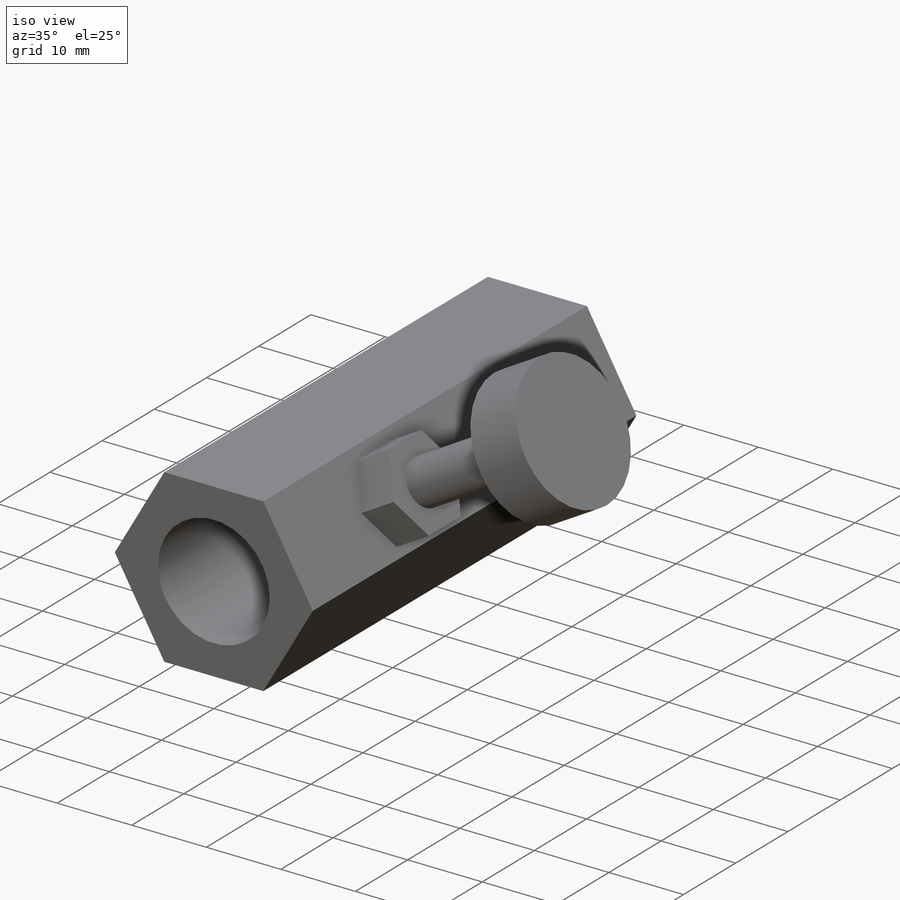
[diagram: iso view]
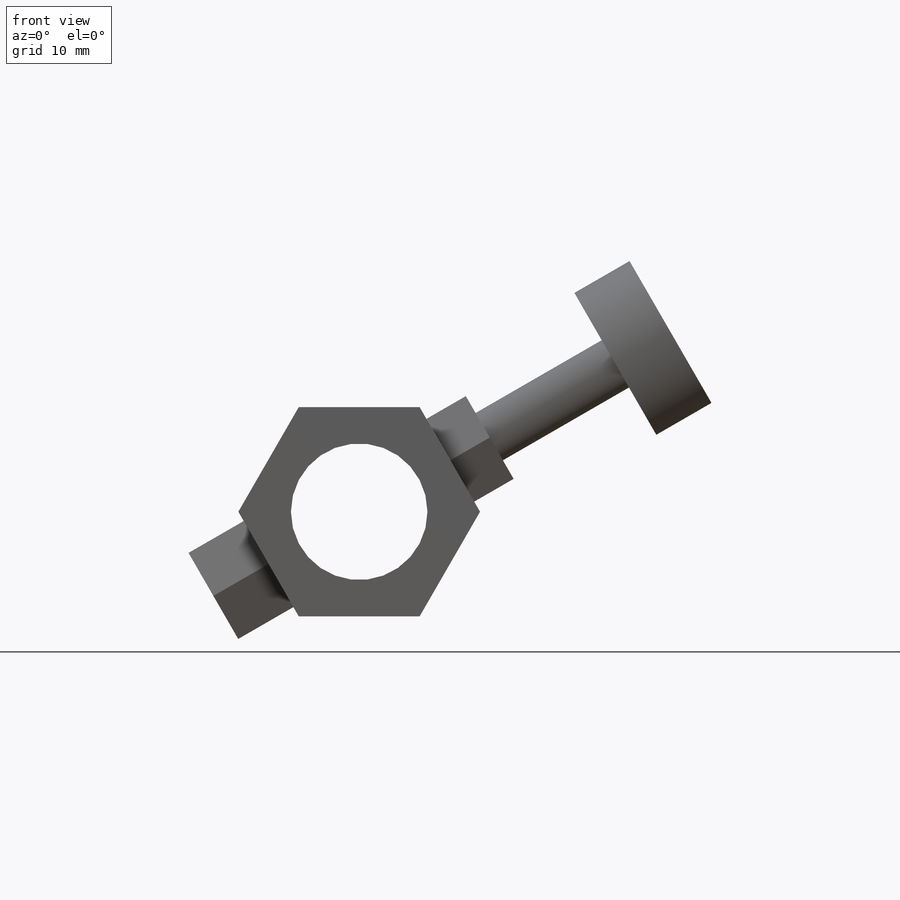
[diagram: front view]
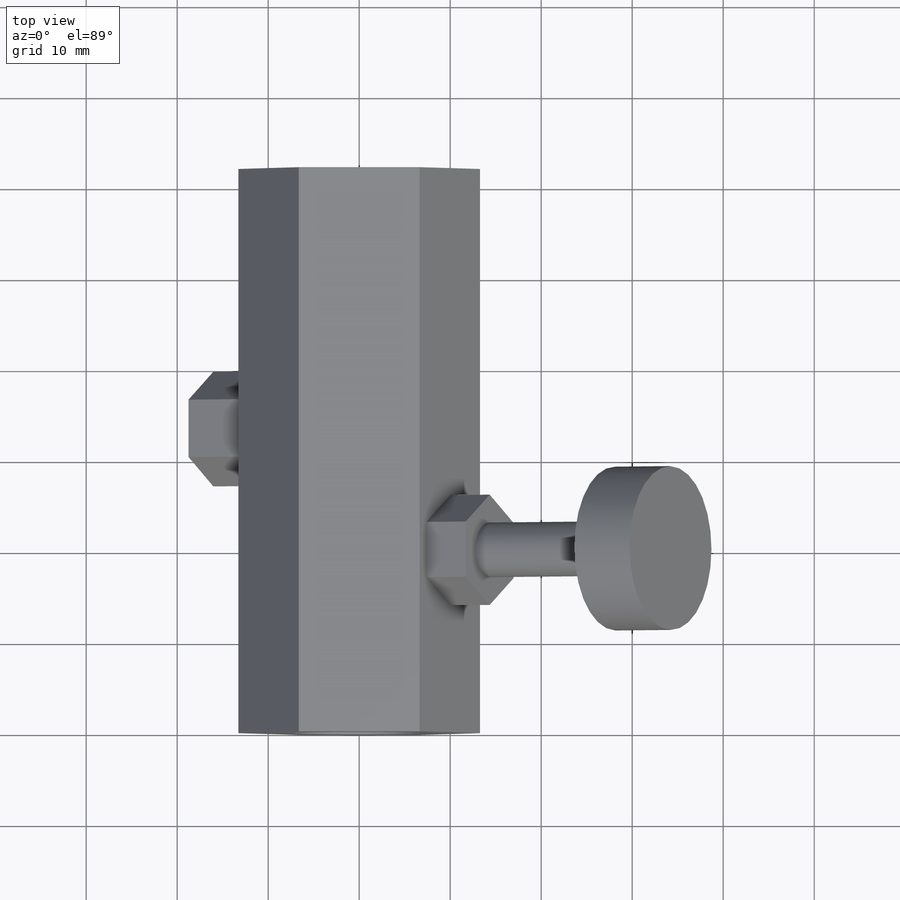
[diagram: top view]
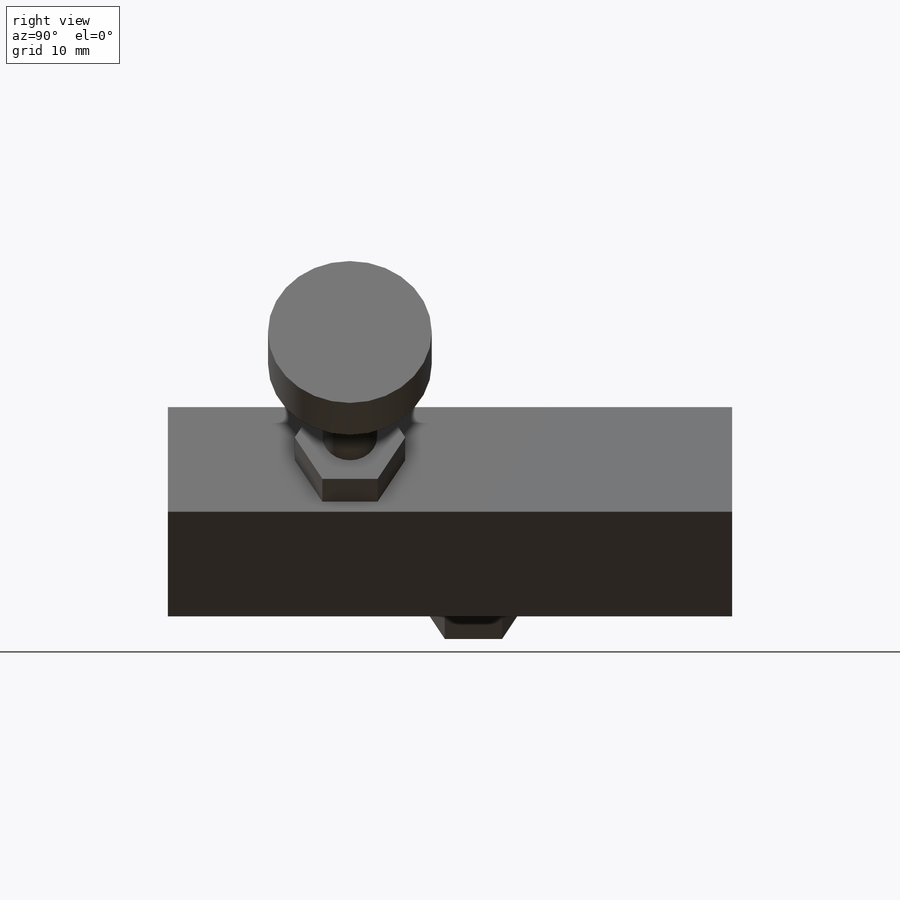
[diagram: right view]
SOLIDWORKS PART (.sldprt)
format: sldprt  version: not decoded by parser v0  size: 148,992 bytes
history: native  units: mm
features: sketch x6, extrude x5, plane x3, material x1, cut_extrude x1 (+13 scaffold rows collapsed)
feature tree (29):
  scaffold x13  (default folders/planes/origin — collapsed)
  material  "材质 <未指定>"
  plane  "前视基准面"
  plane  "上视基准面"
  plane  "右视基准面"
  sketch  "草图1"  dims[D1=23.0mm]
  extrude  "凸台-拉伸1"  Depth=20mm
  sketch  "草图2"  dims[D1=15.0mm]
  cut_extrude  "切除-拉伸1"  Depth=65mm
  sketch  "草图3"
  extrude  "凸台-拉伸2"  Depth=5mm
  sketch  "草图4"  dims[D1=6.0mm]
  extrude  "凸台-拉伸3"  Depth=16mm
  sketch  "草图5"  dims[D1=18.0mm]
  extrude  "凸台-拉伸4"  Depth=7mm
  sketch  "草图6"
  extrude  "凸台-拉伸5"  Depth=7mm
decode coverage: 10 of 12 modeling features carry decoded parameters
note: suppression state not decoded; provenance and decode notes live in map.json
